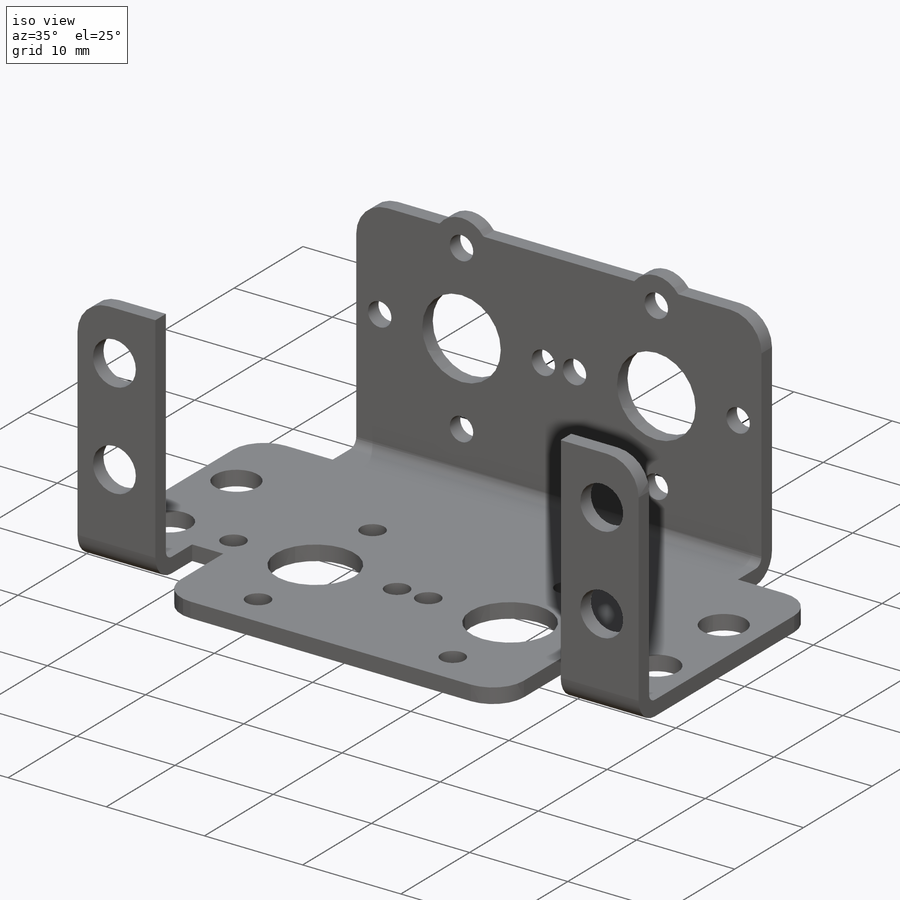
[diagram: iso view]
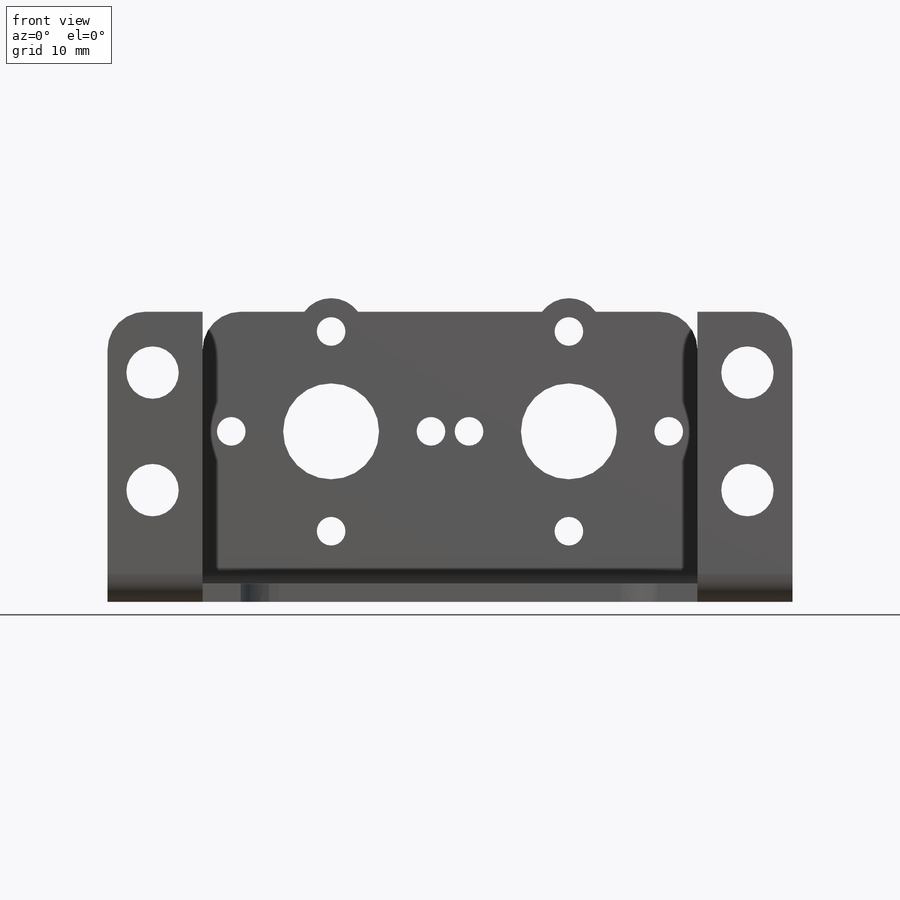
[diagram: front view]
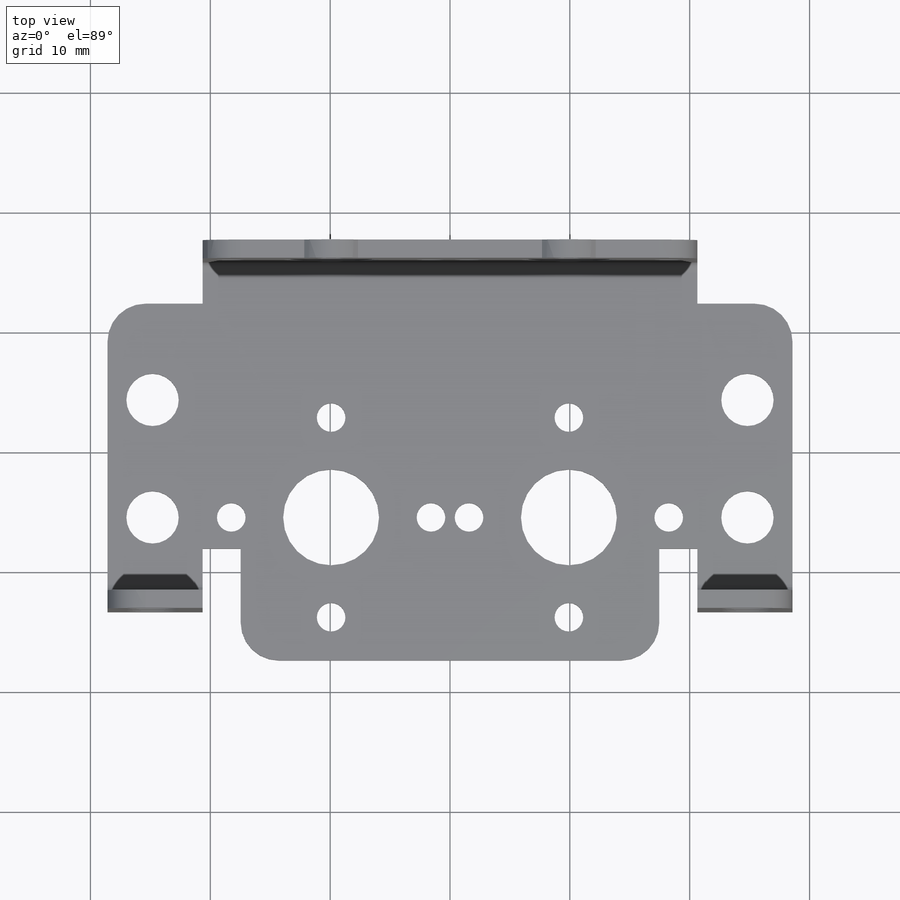
[diagram: top view]
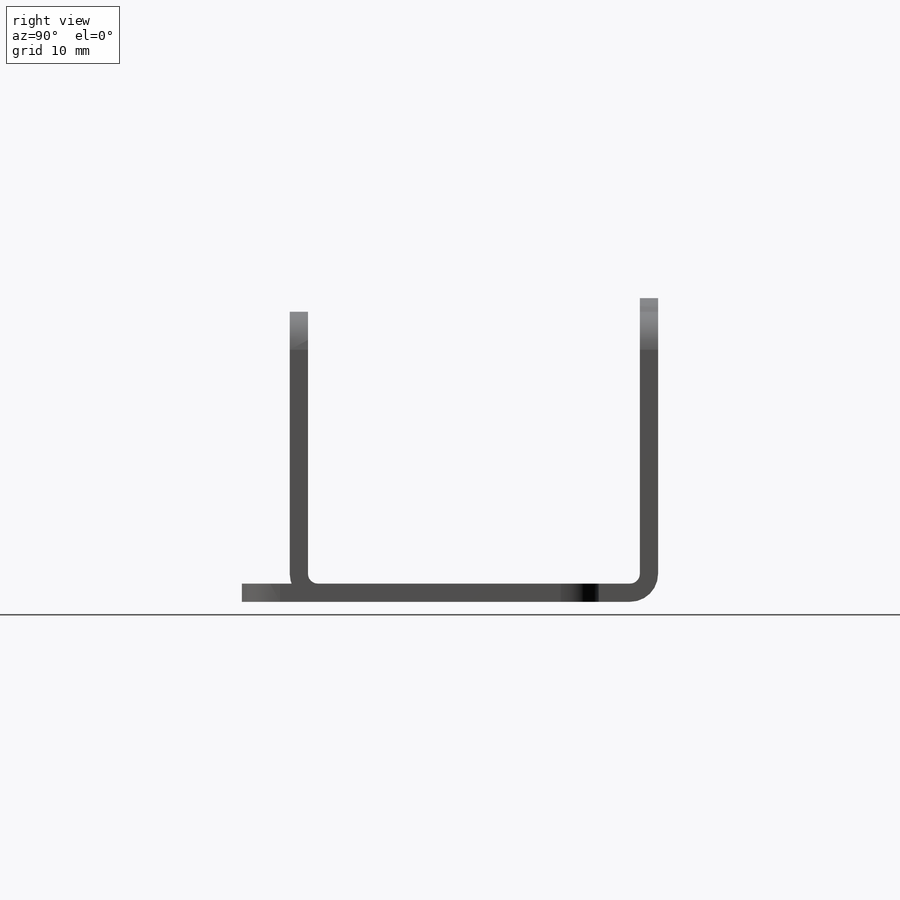
[diagram: right view]
SOLIDWORKS PART (.sldprt)
format: sldprt  version: not decoded by parser v0  size: 493,056 bytes
history: native  units: mm
features: sketch x10, cut_extrude x4, sheet_metal_op x3, fillet x3, material x1 + 1 further entry (+14 scaffold rows collapsed; 1 parser-record rows omitted)
feature tree (37):
  scaffold x14  (default folders/planes/origin — collapsed)
  material  "5052-H32"
  sketch  "Sketch1"  dims[c1.D1=~137.28639mm c2.D1=57.15mm c2.D2=34.7218mm]
  sheet_metal_op  "Sheet-Metal1"  Thickness=1.524mm
  sheet_metal_op  "Base-Flange1"
  sketch  "Sketch3"  dims[c1.D10=8.001mm c1.D11=2.3876mm c1.D12=4.3688mm c1.D9=4.3688mm c1.D1=41.275mm c1.D2=4.953mm c1.D3=3.9878mm c1.D4=34.925mm c1.D5=3.175mm c1.D6=16.6624mm c1.D7=3.7592mm c1.D8=11.938mm c2.D9=12.9794mm]
  cut_extrude  "Extrude1"  [1 undecoded]
  sketch  "Sketch4"  dims[c1.D1=3.175mm c1.D2=~5.585078mm c1.D3=~2.365122mm c2.D2=25.4mm]
  cut_extrude  "Extrude2"  [1 undecoded]
  sketch  "Sketch11"
  sketch  "Sketch12"
  sketch  "Sketch13"  dims[c1.D1=0.8128mm c1.D4=90.0deg c1.D5=1.0 c1.D8=0.762mm c1.D9=0.762mm c2.D1=0.8128mm c2.D4=90.0deg c2.D5=2.0 c2.D8=0.762mm c2.D9=0.762mm c3.D1=0.8128mm c3.D4=90.0deg c3.D5=3.0 c3.D8=0.762mm c3.D9=0.762mm c4.D1=0.8128mm c4.D2=500.0mm c4.D3=0.0mm c4.D6=10.0mm c4.D7=24.2062mm c4.D8=0.508mm]
  sketch  "Sketch14"  dims[D4=4.3688mm D1=3.7592mm D2=9.3218mm D3=19.1262mm]
  cut_extrude  "Extrude3"  [1 undecoded]
  sketch  "Sketch15"  dims[D3=5.5626mm D1=3.175mm D2=16.6624mm D4=14.224mm]
  sheet_metal_op  "Tab1"
  sketch  "Sketch16"  dims[D1=8.001mm D2=2.3876mm]
  cut_extrude  "Extrude4"  [1 undecoded]
  fillet  "Fillet1"  Radius=3.175mm
  "Flat-Pattern1"
  sketch  "Bend-Lines1"
  fillet  "Flatten-<EdgeBend2>1"  [1 undecoded]
  fillet  "Flatten-<EdgeBend3>1"  [1 undecoded]
  parser-record x1  (decoder bookkeeping rows leaked as tree rows — omitted from the tree; the rows remain in map.json)
decode coverage: 9 of 20 modeling features carry decoded parameters; 1 rows unclassified (native names shown)
note: ~ marks probable driven/reference dimensions
note: 6 parameter values undecoded
summary: no parameter record found for 6 features
note: suppression state not decoded; provenance and decode notes live in map.json
